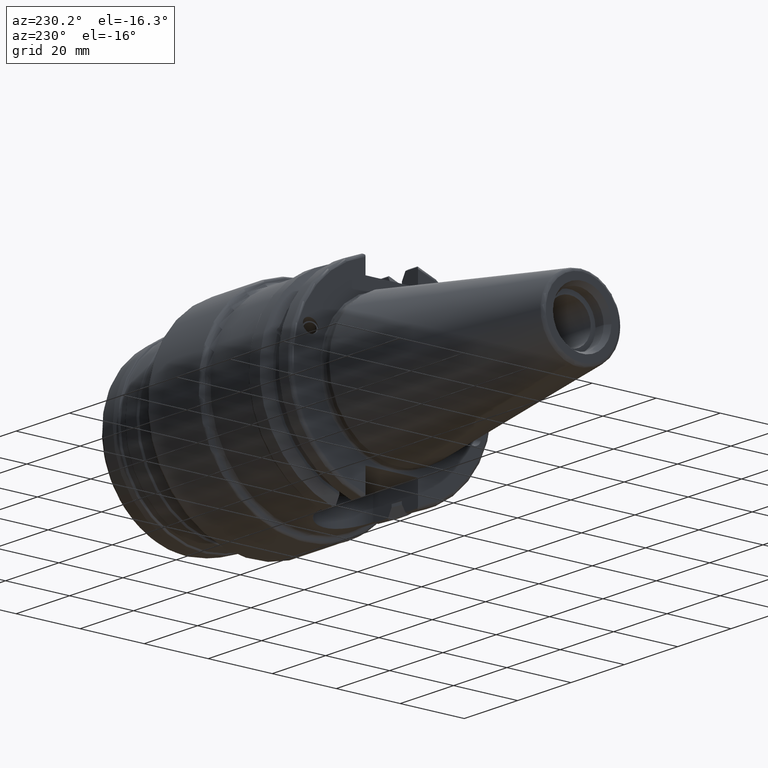
[diagram: clean part render]
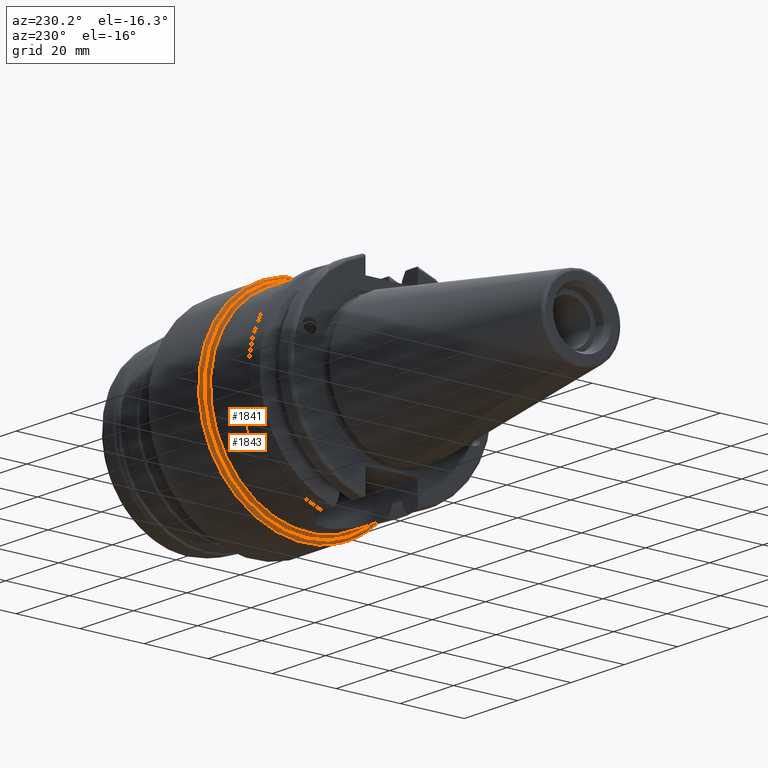
[diagram: same view with one multi-face feature highlighted, each face labeled with its STEP entity id]
A machine part, auxiliary view. The highlighted faces form ONE feature: a constant-radius fillet chain: 2 tangent blend faces with common blend radius 1 mm. The faces share edges in the B-rep.
Their STEP definitions:
[1] entity #1843 (Torus):
#397=FACE_OUTER_BOUND('',#504,.T.);
#504=EDGE_LOOP('',(#1367,#1368,#1369,#1370,#1371));
#649=CIRCLE('',#2018,33.);
#650=CIRCLE('',#2019,33.);
#658=CIRCLE('',#2031,32.);
#663=CIRCLE('',#2038,1.);
#768=VERTEX_POINT('',#2924);
#769=VERTEX_POINT('',#2926);
#776=VERTEX_POINT('',#2946);
#982=EDGE_CURVE('',#769,#768,#649,.T.);
#983=EDGE_CURVE('',#768,#769,#650,.T.);
#992=EDGE_CURVE('',#776,#776,#658,.T.);
#1004=EDGE_CURVE('',#769,#776,#663,.T.);
#1367=ORIENTED_EDGE('',*,*,#982,.T.);
#1368=ORIENTED_EDGE('',*,*,#983,.T.);
#1369=ORIENTED_EDGE('',*,*,#1004,.T.);
#1370=ORIENTED_EDGE('',*,*,#992,.T.);
#1371=ORIENTED_EDGE('',*,*,#1004,.F.);
#1808=TOROIDAL_SURFACE('',#2037,32.,1.);
#1843=ADVANCED_FACE('',(#397),#1808,.T.);
#2018=AXIS2_PLACEMENT_3D('',#2927,#2356,#2357);
#2019=AXIS2_PLACEMENT_3D('',#2928,#2358,#2359);
#2031=AXIS2_PLACEMENT_3D('',#2948,#2383,#2384);
#2037=AXIS2_PLACEMENT_3D('',#3004,#2400,#2401);
#2038=AXIS2_PLACEMENT_3D('',#3005,#2402,#2403);
#2356=DIRECTION('center_axis',(-1.,0.,0.));
#2357=DIRECTION('ref_axis',(0.,-1.,1.83697019872103E-16));
#2358=DIRECTION('center_axis',(-1.,0.,0.));
#2359=DIRECTION('ref_axis',(0.,-1.,1.83697019872103E-16));
#2383=DIRECTION('center_axis',(1.,0.,0.));
#2384=DIRECTION('ref_axis',(0.,-1.,1.83697019872103E-16));
#2400=DIRECTION('center_axis',(1.,0.,0.));
#2401=DIRECTION('ref_axis',(0.,0.,-1.));
#2402=DIRECTION('center_axis',(0.,-1.,-1.22464679914735E-16));
#2403=DIRECTION('ref_axis',(0.,-1.22464679914735E-16,1.));
#2924=CARTESIAN_POINT('',(36.,-33.,-4.04133443718627E-15));
#2926=CARTESIAN_POINT('',(36.,-4.04133443718627E-15,33.));
#2927=CARTESIAN_POINT('Origin',(36.,0.,0.));
#2928=CARTESIAN_POINT('Origin',(36.,0.,0.));
#2946=CARTESIAN_POINT('',(35.,-3.91886975727153E-15,32.));
#2948=CARTESIAN_POINT('Origin',(35.,0.,0.));
#3004=CARTESIAN_POINT('Origin',(36.,0.,0.));
#3005=CARTESIAN_POINT('Origin',(36.,-3.91886975727153E-15,32.));
[2] entity #1841 (Torus):
#395=FACE_OUTER_BOUND('',#502,.T.);
#502=EDGE_LOOP('',(#1349,#1350,#1351,#1352,#1353));
#656=CIRCLE('',#2029,31.);
#657=CIRCLE('',#2030,1.);
#658=CIRCLE('',#2031,32.);
#659=CIRCLE('',#2032,31.);
#774=VERTEX_POINT('',#2943);
#775=VERTEX_POINT('',#2944);
#776=VERTEX_POINT('',#2946);
#990=EDGE_CURVE('',#774,#775,#656,.T.);
#991=EDGE_CURVE('',#775,#776,#657,.T.);
#992=EDGE_CURVE('',#776,#776,#658,.T.);
#993=EDGE_CURVE('',#775,#774,#659,.T.);
#1349=ORIENTED_EDGE('',*,*,#990,.T.);
#1350=ORIENTED_EDGE('',*,*,#991,.T.);
#1351=ORIENTED_EDGE('',*,*,#992,.F.);
#1352=ORIENTED_EDGE('',*,*,#991,.F.);
#1353=ORIENTED_EDGE('',*,*,#993,.T.);
#1807=TOROIDAL_SURFACE('',#2028,32.,1.);
#1841=ADVANCED_FACE('',(#395),#1807,.F.);
#2028=AXIS2_PLACEMENT_3D('',#2942,#2377,#2378);
#2029=AXIS2_PLACEMENT_3D('',#2945,#2379,#2380);
#2030=AXIS2_PLACEMENT_3D('',#2947,#2381,#2382);
#2031=AXIS2_PLACEMENT_3D('',#2948,#2383,#2384);
#2032=AXIS2_PLACEMENT_3D('',#2949,#2385,#2386);
#2377=DIRECTION('center_axis',(1.,0.,0.));
#2378=DIRECTION('ref_axis',(0.,0.,-1.));
#2379=DIRECTION('center_axis',(1.,0.,0.));
#2380=DIRECTION('ref_axis',(0.,-1.,1.83697019872103E-16));
#2381=DIRECTION('center_axis',(0.,-1.,-1.22464679914735E-16));
#2382=DIRECTION('ref_axis',(0.,-1.22464679914735E-16,1.));
#2383=DIRECTION('center_axis',(1.,0.,0.));
#2384=DIRECTION('ref_axis',(0.,-1.,1.83697019872103E-16));
#2385=DIRECTION('center_axis',(1.,0.,0.));
#2386=DIRECTION('ref_axis',(0.,-1.,1.83697019872103E-16));
#2942=CARTESIAN_POINT('Origin',(34.,0.,0.));
#2943=CARTESIAN_POINT('',(34.,-31.,-3.7964050773568E-15));
#2944=CARTESIAN_POINT('',(34.,-3.7964050773568E-15,31.));
#2945=CARTESIAN_POINT('Origin',(34.,0.,0.));
#2946=CARTESIAN_POINT('',(35.,-3.91886975727153E-15,32.));
#2947=CARTESIAN_POINT('Origin',(34.,-3.91886975727153E-15,32.));
#2948=CARTESIAN_POINT('Origin',(35.,0.,0.));
#2949=CARTESIAN_POINT('Origin',(34.,0.,0.));